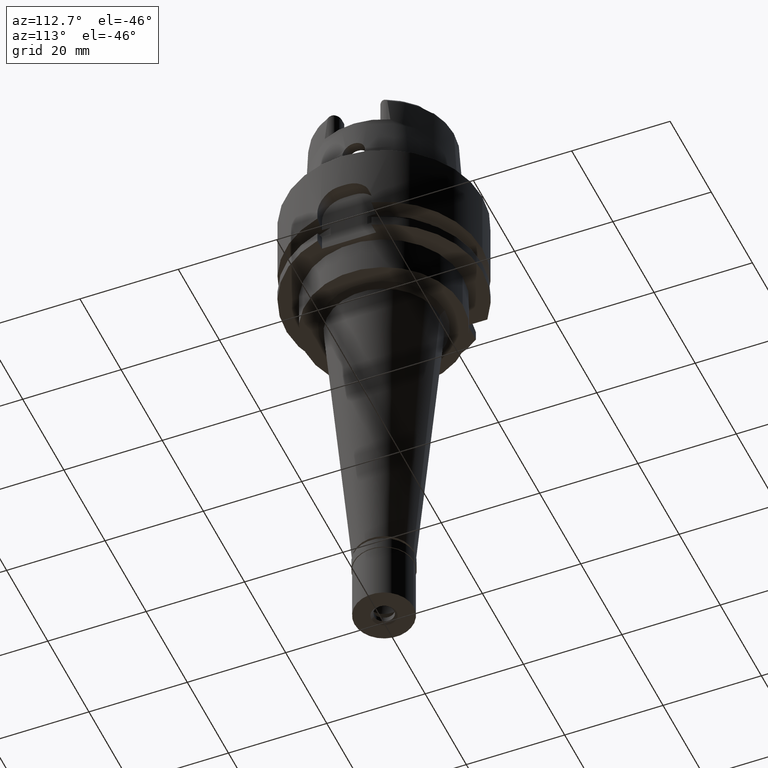
[diagram: clean part render]
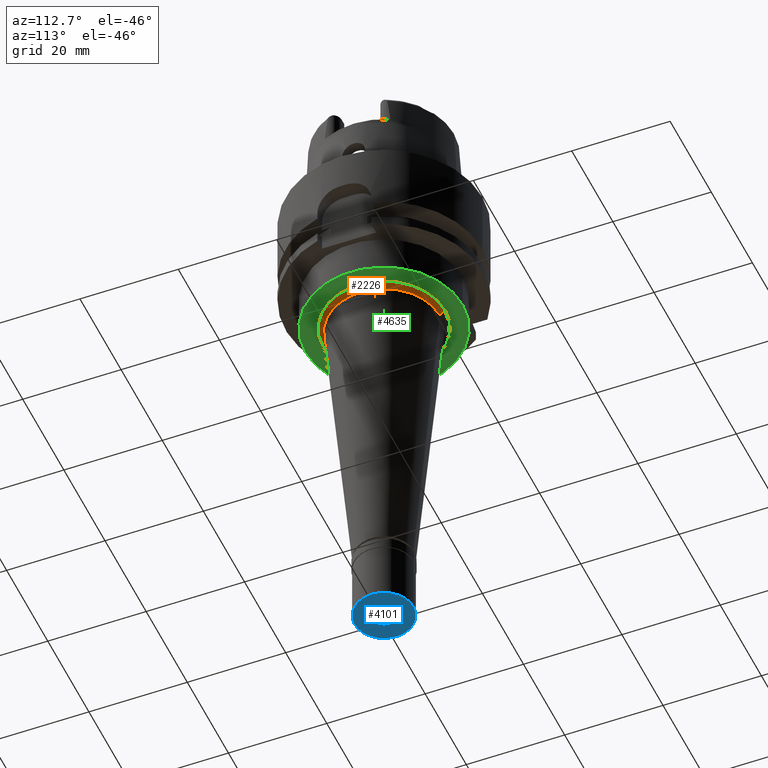
[diagram: same view with three faces highlighted in distinct colors, each labeled with its STEP entity id]
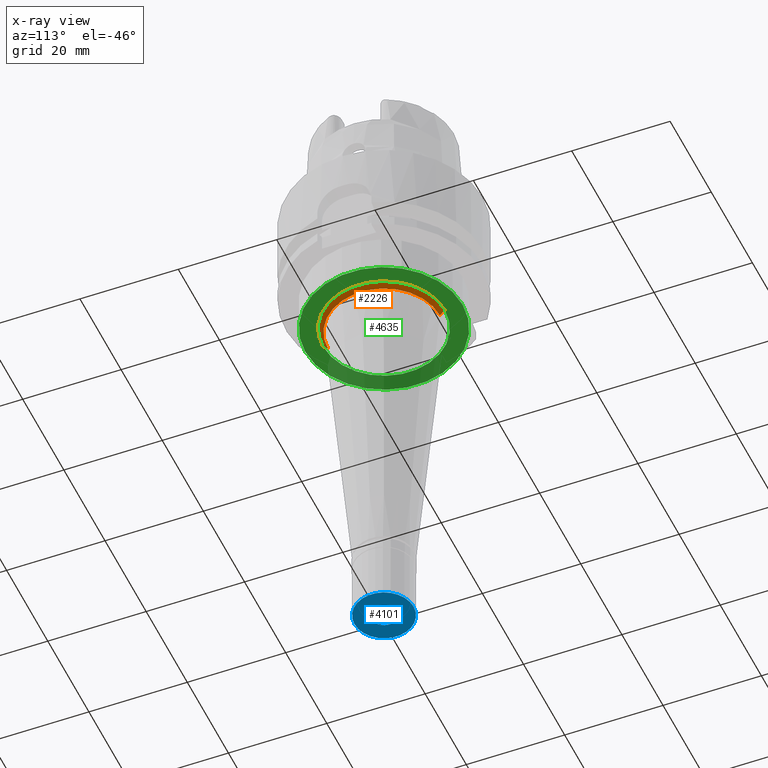
[diagram: x-ray of the same camera — body ghosted, the three highlighted faces saturated]
A machine part, auxiliary view with three faces highlighted in distinct colors.
The next image is the same camera in x-ray (body ghosted, the three faces saturated) — at least one of them is partly hidden behind the body in this view.
Their STEP definitions:

[orange] entity #2226 — the highlighted conical surface has half-angle 45 deg.
#121 = ORIENTED_EDGE ( 'NONE', *, *, #2793, .T. ) ;
#214 = CARTESIAN_POINT ( 'NONE',  ( 0.0000000000000000000, -12.36305507414000182, -27.50000000000000000 ) ) ;
#323 = CARTESIAN_POINT ( 'NONE',  ( 0.0000000000000000000, 12.36305507414000182, -27.50000000000000000 ) ) ;
#682 = AXIS2_PLACEMENT_3D ( 'NONE', #4333, #1913, #3560 ) ;
#985 = CARTESIAN_POINT ( 'NONE',  ( 0.0000000000000000000, 11.36305507414000004, -28.50000000000000000 ) ) ;
#1020 = CARTESIAN_POINT ( 'NONE',  ( 0.0000000000000000000, 12.36305507414000182, -27.50000000000000000 ) ) ;
#1331 = CARTESIAN_POINT ( 'NONE',  ( 0.0000000000000000000, -12.36305507414000182, -27.50000000000000000 ) ) ;
#1340 = VERTEX_POINT ( 'NONE', #985 ) ;
#1353 = VECTOR ( 'NONE', #2774, 1000.000000000000000 ) ;
#1429 = VECTOR ( 'NONE', #1461, 1000.000000000000000 ) ;
#1461 = DIRECTION ( 'NONE',  ( 0.0000000000000000000, 0.7071067811865969777, -0.7071067811864980568 ) ) ;
#1513 = LINE ( 'NONE', #323, #1353 ) ;
#1551 = EDGE_LOOP ( 'NONE', ( #1656, #121, #3174, #3678 ) ) ;
#1656 = ORIENTED_EDGE ( 'NONE', *, *, #5118, .T. ) ;
#1767 = CIRCLE ( 'NONE', #682, 11.36305507414000004 ) ;
#1848 = CARTESIAN_POINT ( 'NONE',  ( 0.0000000000000000000, 0.0000000000000000000, -27.50000000000000000 ) ) ;
#1903 = DIRECTION ( 'NONE',  ( 0.0000000000000000000, 0.0000000000000000000, 1.000000000000000000 ) ) ;
#1913 = DIRECTION ( 'NONE',  ( 0.0000000000000000000, 0.0000000000000000000, 1.000000000000000000 ) ) ;
#2218 = DIRECTION ( 'NONE',  ( 0.0000000000000000000, 0.0000000000000000000, -1.000000000000000000 ) ) ;
#2226 = ADVANCED_FACE ( 'NONE', ( #4666 ), #4039, .T. ) ;
#2356 = AXIS2_PLACEMENT_3D ( 'NONE', #1848, #2218, #3435 ) ;
#2453 = CIRCLE ( 'NONE', #2356, 12.36305507414000182 ) ;
#2669 = DIRECTION ( 'NONE',  ( 0.0000000000000000000, 1.000000000000000000, 0.0000000000000000000 ) ) ;
#2765 = AXIS2_PLACEMENT_3D ( 'NONE', #3546, #1903, #2669 ) ;
#2774 = DIRECTION ( 'NONE',  ( 0.0000000000000000000, -0.7071067811865969777, -0.7071067811864980568 ) ) ;
#2793 = EDGE_CURVE ( 'NONE', #3669, #3798, #3838, .T. ) ;
#3174 = ORIENTED_EDGE ( 'NONE', *, *, #4688, .T. ) ;
#3435 = DIRECTION ( 'NONE',  ( 0.0000000000000000000, 1.000000000000000000, 0.0000000000000000000 ) ) ;
#3546 = CARTESIAN_POINT ( 'NONE',  ( 0.0000000000000000000, 0.0000000000000000000, -28.00000000000000000 ) ) ;
#3560 = DIRECTION ( 'NONE',  ( 0.0000000000000000000, -1.000000000000000000, 0.0000000000000000000 ) ) ;
#3669 = VERTEX_POINT ( 'NONE', #1331 ) ;
#3677 = CARTESIAN_POINT ( 'NONE',  ( 0.0000000000000000000, -11.36305507414000004, -28.50000000000000000 ) ) ;
#3678 = ORIENTED_EDGE ( 'NONE', *, *, #3762, .F. ) ;
#3762 = EDGE_CURVE ( 'NONE', #4498, #1340, #1513, .T. ) ;
#3798 = VERTEX_POINT ( 'NONE', #3677 ) ;
#3838 = LINE ( 'NONE', #214, #1429 ) ;
#4039 = CONICAL_SURFACE ( 'NONE', #2765, 11.86305507414000004, 0.7853981633972997312 ) ;
#4333 = CARTESIAN_POINT ( 'NONE',  ( 0.0000000000000000000, 0.0000000000000000000, -28.50000000000000000 ) ) ;
#4498 = VERTEX_POINT ( 'NONE', #1020 ) ;
#4666 = FACE_OUTER_BOUND ( 'NONE', #1551, .T. ) ;
#4688 = EDGE_CURVE ( 'NONE', #3798, #1340, #1767, .T. ) ;
#5118 = EDGE_CURVE ( 'NONE', #4498, #3669, #2453, .T. ) ;

[blue] entity #4101 — the highlighted planar face has unit normal (0, 0, 1).
#57 = ORIENTED_EDGE ( 'NONE', *, *, #2172, .F. ) ;
#248 = DIRECTION ( 'NONE',  ( 0.0000000000000000000, -1.000000000000000000, 0.0000000000000000000 ) ) ;
#444 = PLANE ( 'NONE',  #3632 ) ;
#497 = DIRECTION ( 'NONE',  ( 0.0000000000000000000, 0.0000000000000000000, -1.000000000000000000 ) ) ;
#709 = DIRECTION ( 'NONE',  ( 0.0000000000000000000, 1.000000000000000000, 0.0000000000000000000 ) ) ;
#812 = DIRECTION ( 'NONE',  ( 1.000000000000000000, 0.0000000000000000000, 0.0000000000000000000 ) ) ;
#855 = CARTESIAN_POINT ( 'NONE',  ( 0.0000000000000000000, 0.0000000000000000000, -14.50000000000000000 ) ) ;
#885 = ORIENTED_EDGE ( 'NONE', *, *, #3728, .F. ) ;
#1204 = FACE_BOUND ( 'NONE', #2548, .T. ) ;
#1240 = AXIS2_PLACEMENT_3D ( 'NONE', #3784, #497, #1380 ) ;
#1352 = ORIENTED_EDGE ( 'NONE', *, *, #2497, .F. ) ;
#1366 = EDGE_CURVE ( 'NONE', #4765, #2473, #1826, .T. ) ;
#1380 = DIRECTION ( 'NONE',  ( 0.0000000000000000000, 1.000000000000000000, 0.0000000000000000000 ) ) ;
#1466 = DIRECTION ( 'NONE',  ( 0.0000000000000000000, 0.0000000000000000000, 1.000000000000000000 ) ) ;
#1488 = DIRECTION ( 'NONE',  ( 0.0000000000000000000, 0.0000000000000000000, 1.000000000000000000 ) ) ;
#1509 = AXIS2_PLACEMENT_3D ( 'NONE', #2745, #1488, #709 ) ;
#1826 = CIRCLE ( 'NONE', #1985, 2.550000000000000266 ) ;
#1939 = ORIENTED_EDGE ( 'NONE', *, *, #1366, .F. ) ;
#1985 = AXIS2_PLACEMENT_3D ( 'NONE', #3847, #4300, #5064 ) ;
#2172 = EDGE_CURVE ( 'NONE', #4646, #4622, #5214, .T. ) ;
#2383 = EDGE_LOOP ( 'NONE', ( #57, #885 ) ) ;
#2473 = VERTEX_POINT ( 'NONE', #4921 ) ;
#2497 = EDGE_CURVE ( 'NONE', #2473, #4765, #3535, .T. ) ;
#2548 = EDGE_LOOP ( 'NONE', ( #1352, #1939 ) ) ;
#2745 = CARTESIAN_POINT ( 'NONE',  ( 0.0000000000000000000, 0.0000000000000000000, -14.50000000000000000 ) ) ;
#3250 = CARTESIAN_POINT ( 'NONE',  ( 0.0000000000000000000, 0.0000000000000000000, -14.50000000000000000 ) ) ;
#3535 = CIRCLE ( 'NONE', #1240, 2.550000000000000266 ) ;
#3632 = AXIS2_PLACEMENT_3D ( 'NONE', #3250, #4834, #812 ) ;
#3728 = EDGE_CURVE ( 'NONE', #4622, #4646, #5077, .T. ) ;
#3784 = CARTESIAN_POINT ( 'NONE',  ( 0.0000000000000000000, 0.0000000000000000000, -14.50000000000000000 ) ) ;
#3847 = CARTESIAN_POINT ( 'NONE',  ( 0.0000000000000000000, 0.0000000000000000000, -14.50000000000000000 ) ) ;
#3953 = CARTESIAN_POINT ( 'NONE',  ( 0.0000000000000000000, -2.550000000000000266, -14.50000000000000000 ) ) ;
#4101 = ADVANCED_FACE ( 'NONE', ( #5235, #1204 ), #444, .F. ) ;
#4281 = CARTESIAN_POINT ( 'NONE',  ( 0.0000000000000000000, 6.000000000000000000, -14.50000000000000000 ) ) ;
#4300 = DIRECTION ( 'NONE',  ( 0.0000000000000000000, 0.0000000000000000000, -1.000000000000000000 ) ) ;
#4622 = VERTEX_POINT ( 'NONE', #4672 ) ;
#4646 = VERTEX_POINT ( 'NONE', #4281 ) ;
#4672 = CARTESIAN_POINT ( 'NONE',  ( 0.0000000000000000000, -6.000000000000000000, -14.50000000000000000 ) ) ;
#4765 = VERTEX_POINT ( 'NONE', #3953 ) ;
#4834 = DIRECTION ( 'NONE',  ( 0.0000000000000000000, 0.0000000000000000000, 1.000000000000000000 ) ) ;
#4898 = AXIS2_PLACEMENT_3D ( 'NONE', #855, #1466, #248 ) ;
#4921 = CARTESIAN_POINT ( 'NONE',  ( 0.0000000000000000000, 2.550000000000000266, -14.50000000000000000 ) ) ;
#5064 = DIRECTION ( 'NONE',  ( 0.0000000000000000000, -1.000000000000000000, 0.0000000000000000000 ) ) ;
#5077 = CIRCLE ( 'NONE', #4898, 6.000000000000000000 ) ;
#5214 = CIRCLE ( 'NONE', #1509, 6.000000000000000000 ) ;
#5235 = FACE_OUTER_BOUND ( 'NONE', #2383, .T. ) ;

[green] entity #4635 — the highlighted planar face has unit normal (0, 0, -1).
#8 = VERTEX_POINT ( 'NONE', #1900 ) ;
#145 = CIRCLE ( 'NONE', #2756, 12.36305507414000182 ) ;
#173 = AXIS2_PLACEMENT_3D ( 'NONE', #666, #255, #1937 ) ;
#255 = DIRECTION ( 'NONE',  ( 0.0000000000000000000, 0.0000000000000000000, 1.000000000000000000 ) ) ;
#260 = CARTESIAN_POINT ( 'NONE',  ( 0.0000000000000000000, 1.543667290324999758E-14, -27.50000000000000000 ) ) ;
#307 = FACE_OUTER_BOUND ( 'NONE', #3563, .T. ) ;
#422 = AXIS2_PLACEMENT_3D ( 'NONE', #3853, #2652, #3081 ) ;
#622 = FACE_BOUND ( 'NONE', #1347, .T. ) ;
#666 = CARTESIAN_POINT ( 'NONE',  ( 0.0000000000000000000, 1.543667290324999758E-14, -27.50000000000000000 ) ) ;
#1020 = CARTESIAN_POINT ( 'NONE',  ( 0.0000000000000000000, 12.36305507414000182, -27.50000000000000000 ) ) ;
#1043 = DIRECTION ( 'NONE',  ( 0.0000000000000000000, 0.0000000000000000000, -1.000000000000000000 ) ) ;
#1123 = VERTEX_POINT ( 'NONE', #4383 ) ;
#1243 = ORIENTED_EDGE ( 'NONE', *, *, #4598, .F. ) ;
#1331 = CARTESIAN_POINT ( 'NONE',  ( 0.0000000000000000000, -12.36305507414000182, -27.50000000000000000 ) ) ;
#1347 = EDGE_LOOP ( 'NONE', ( #4108, #4003 ) ) ;
#1496 = PLANE ( 'NONE',  #422 ) ;
#1519 = CIRCLE ( 'NONE', #173, 16.00000000000000000 ) ;
#1721 = ORIENTED_EDGE ( 'NONE', *, *, #3240, .F. ) ;
#1770 = AXIS2_PLACEMENT_3D ( 'NONE', #260, #5046, #4623 ) ;
#1838 = EDGE_CURVE ( 'NONE', #3669, #4498, #145, .T. ) ;
#1848 = CARTESIAN_POINT ( 'NONE',  ( 0.0000000000000000000, 0.0000000000000000000, -27.50000000000000000 ) ) ;
#1900 = CARTESIAN_POINT ( 'NONE',  ( 0.0000000000000000000, -16.00000000000000000, -27.50000000000000000 ) ) ;
#1937 = DIRECTION ( 'NONE',  ( 0.0000000000000000000, -1.000000000000000000, 0.0000000000000000000 ) ) ;
#1964 = DIRECTION ( 'NONE',  ( 0.0000000000000000000, -1.000000000000000000, 0.0000000000000000000 ) ) ;
#2218 = DIRECTION ( 'NONE',  ( 0.0000000000000000000, 0.0000000000000000000, -1.000000000000000000 ) ) ;
#2356 = AXIS2_PLACEMENT_3D ( 'NONE', #1848, #2218, #3435 ) ;
#2453 = CIRCLE ( 'NONE', #2356, 12.36305507414000182 ) ;
#2652 = DIRECTION ( 'NONE',  ( 0.0000000000000000000, 0.0000000000000000000, -1.000000000000000000 ) ) ;
#2756 = AXIS2_PLACEMENT_3D ( 'NONE', #4745, #1043, #1964 ) ;
#3081 = DIRECTION ( 'NONE',  ( 0.0000000000000000000, -1.000000000000000000, 0.0000000000000000000 ) ) ;
#3240 = EDGE_CURVE ( 'NONE', #1123, #8, #4732, .T. ) ;
#3435 = DIRECTION ( 'NONE',  ( 0.0000000000000000000, 1.000000000000000000, 0.0000000000000000000 ) ) ;
#3563 = EDGE_LOOP ( 'NONE', ( #1721, #1243 ) ) ;
#3669 = VERTEX_POINT ( 'NONE', #1331 ) ;
#3853 = CARTESIAN_POINT ( 'NONE',  ( 0.0000000000000000000, 0.0000000000000000000, -27.50000000000000000 ) ) ;
#4003 = ORIENTED_EDGE ( 'NONE', *, *, #1838, .F. ) ;
#4108 = ORIENTED_EDGE ( 'NONE', *, *, #5118, .F. ) ;
#4383 = CARTESIAN_POINT ( 'NONE',  ( 0.0000000000000000000, 16.00000000000000000, -27.50000000000000000 ) ) ;
#4498 = VERTEX_POINT ( 'NONE', #1020 ) ;
#4598 = EDGE_CURVE ( 'NONE', #8, #1123, #1519, .T. ) ;
#4623 = DIRECTION ( 'NONE',  ( 0.0000000000000000000, 1.000000000000000000, 0.0000000000000000000 ) ) ;
#4635 = ADVANCED_FACE ( 'NONE', ( #307, #622 ), #1496, .T. ) ;
#4732 = CIRCLE ( 'NONE', #1770, 16.00000000000000000 ) ;
#4745 = CARTESIAN_POINT ( 'NONE',  ( 0.0000000000000000000, 0.0000000000000000000, -27.50000000000000000 ) ) ;
#5046 = DIRECTION ( 'NONE',  ( 0.0000000000000000000, 0.0000000000000000000, 1.000000000000000000 ) ) ;
#5118 = EDGE_CURVE ( 'NONE', #4498, #3669, #2453, .T. ) ;